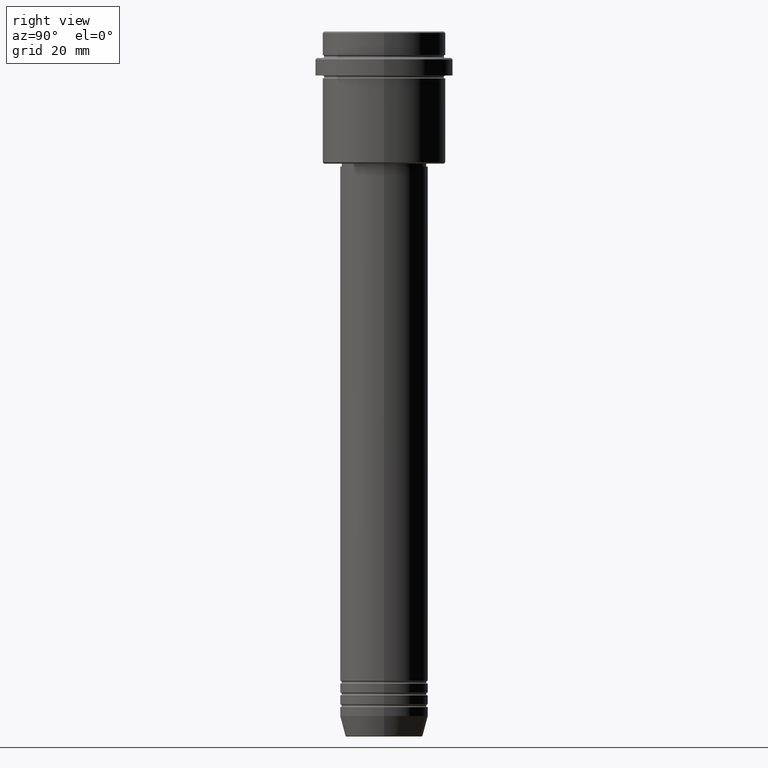
[diagram: clean part render]
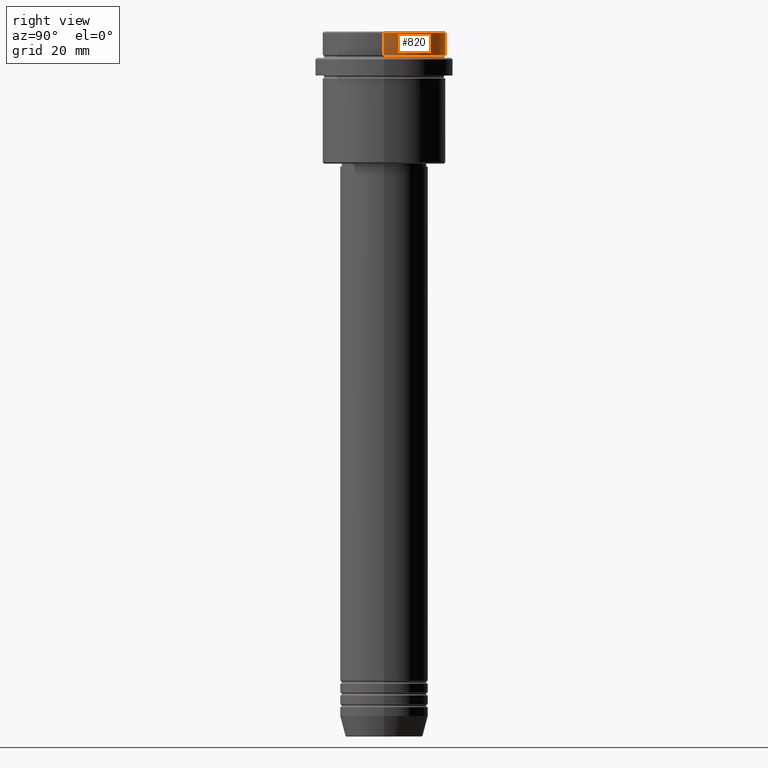
[diagram: same view with one face highlighted and labeled with its STEP entity id]
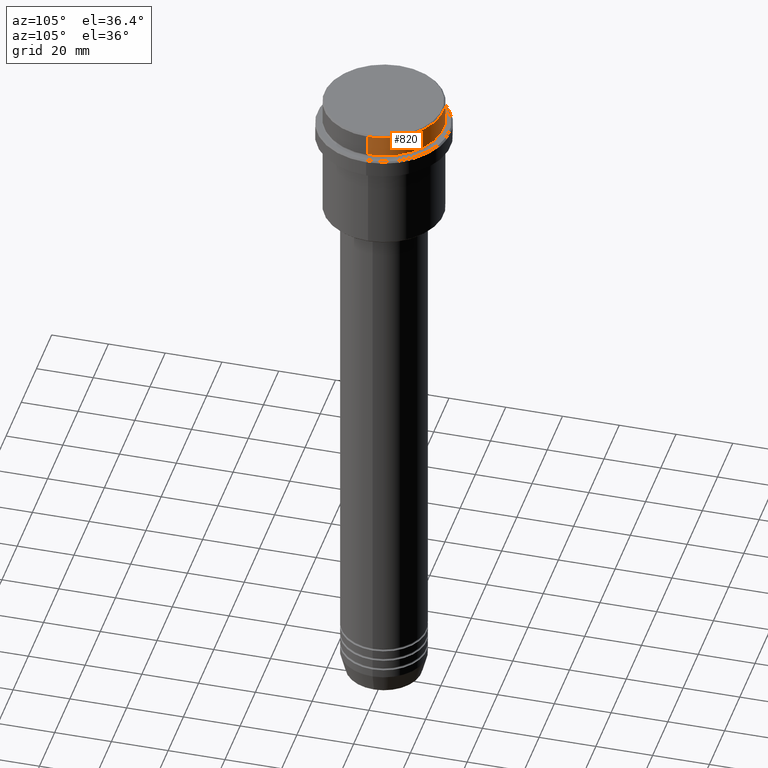
[diagram: same view with one face highlighted and labeled with its STEP entity id]
A machine part, right view. The second image highlights one B-rep face of the part: STEP entity #820.
A second angle (auxiliary view) of the same face is appended — the face is thin or edge-on in the first view.
In plain terms, the highlighted cylindrical surface (partial cylindrical patch) has radius 21 mm, axis along (-0, -0, 1).
Its self-contained STEP definition (entity closure, byte-faithful):
#80 = VERTEX_POINT ( 'NONE', #249 ) ;
#134 = ORIENTED_EDGE ( 'NONE', *, *, #783, .T. ) ;
#138 = CIRCLE ( 'NONE', #963, 20.99999999999999645 ) ;
#203 = LINE ( 'NONE', #1154, #1247 ) ;
#242 = ORIENTED_EDGE ( 'NONE', *, *, #677, .T. ) ;
#249 = CARTESIAN_POINT ( 'NONE',  ( -20.99999999999999645, 2.571758278209441267E-15, -0.5000000000000073275 ) ) ;
#265 = CARTESIAN_POINT ( 'NONE',  ( 20.99999999999999645, 0.000000000000000000, -7.999999999999998224 ) ) ;
#270 = DIRECTION ( 'NONE',  ( -0.000000000000000000, -0.000000000000000000, 1.000000000000000000 ) ) ;
#319 = EDGE_CURVE ( 'NONE', #1240, #80, #1216, .T. ) ;
#348 = AXIS2_PLACEMENT_3D ( 'NONE', #699, #270, #1135 ) ;
#354 = CIRCLE ( 'NONE', #1112, 20.99999999999999645 ) ;
#374 = FACE_OUTER_BOUND ( 'NONE', #1346, .T. ) ;
#524 = DIRECTION ( 'NONE',  ( -0.000000000000000000, -0.000000000000000000, 1.000000000000000000 ) ) ;
#553 = DIRECTION ( 'NONE',  ( 0.000000000000000000, 0.000000000000000000, -1.000000000000000000 ) ) ;
#577 = DIRECTION ( 'NONE',  ( 1.000000000000000000, 0.000000000000000000, 0.000000000000000000 ) ) ;
#611 = CYLINDRICAL_SURFACE ( 'NONE', #348, 20.99999999999999645 ) ;
#664 = ORIENTED_EDGE ( 'NONE', *, *, #1371, .F. ) ;
#677 = EDGE_CURVE ( 'NONE', #80, #1206, #354, .T. ) ;
#688 = DIRECTION ( 'NONE',  ( -0.000000000000000000, -0.000000000000000000, 1.000000000000000000 ) ) ;
#699 = CARTESIAN_POINT ( 'NONE',  ( 0.000000000000000000, 0.000000000000000000, 0.000000000000000000 ) ) ;
#783 = EDGE_CURVE ( 'NONE', #795, #1240, #138, .T. ) ;
#795 = VERTEX_POINT ( 'NONE', #265 ) ;
#797 = CARTESIAN_POINT ( 'NONE',  ( -20.99999999999999645, 2.571758278209441267E-15, -7.999999999999998224 ) ) ;
#820 = ADVANCED_FACE ( 'NONE', ( #374 ), #611, .T. ) ;
#907 = CARTESIAN_POINT ( 'NONE',  ( -20.99999999999999645, 2.571758278209441267E-15, 0.000000000000000000 ) ) ;
#918 = DIRECTION ( 'NONE',  ( -0.000000000000000000, -0.000000000000000000, 1.000000000000000000 ) ) ;
#927 = DIRECTION ( 'NONE',  ( 1.000000000000000000, 0.000000000000000000, 0.000000000000000000 ) ) ;
#963 = AXIS2_PLACEMENT_3D ( 'NONE', #1347, #918, #927 ) ;
#988 = CARTESIAN_POINT ( 'NONE',  ( 0.000000000000000000, 0.000000000000000000, -0.5000000000000073275 ) ) ;
#1028 = CARTESIAN_POINT ( 'NONE',  ( 20.99999999999999645, 0.000000000000000000, -0.5000000000000073275 ) ) ;
#1112 = AXIS2_PLACEMENT_3D ( 'NONE', #988, #553, #577 ) ;
#1135 = DIRECTION ( 'NONE',  ( 1.000000000000000000, 0.000000000000000000, 0.000000000000000000 ) ) ;
#1154 = CARTESIAN_POINT ( 'NONE',  ( 20.99999999999999645, 0.000000000000000000, 0.000000000000000000 ) ) ;
#1206 = VERTEX_POINT ( 'NONE', #1028 ) ;
#1216 = LINE ( 'NONE', #907, #1400 ) ;
#1240 = VERTEX_POINT ( 'NONE', #797 ) ;
#1247 = VECTOR ( 'NONE', #524, 1000.000000000000000 ) ;
#1346 = EDGE_LOOP ( 'NONE', ( #134, #1354, #242, #664 ) ) ;
#1347 = CARTESIAN_POINT ( 'NONE',  ( 0.000000000000000000, 0.000000000000000000, -7.999999999999998224 ) ) ;
#1354 = ORIENTED_EDGE ( 'NONE', *, *, #319, .T. ) ;
#1371 = EDGE_CURVE ( 'NONE', #795, #1206, #203, .T. ) ;
#1400 = VECTOR ( 'NONE', #688, 1000.000000000000000 ) ;